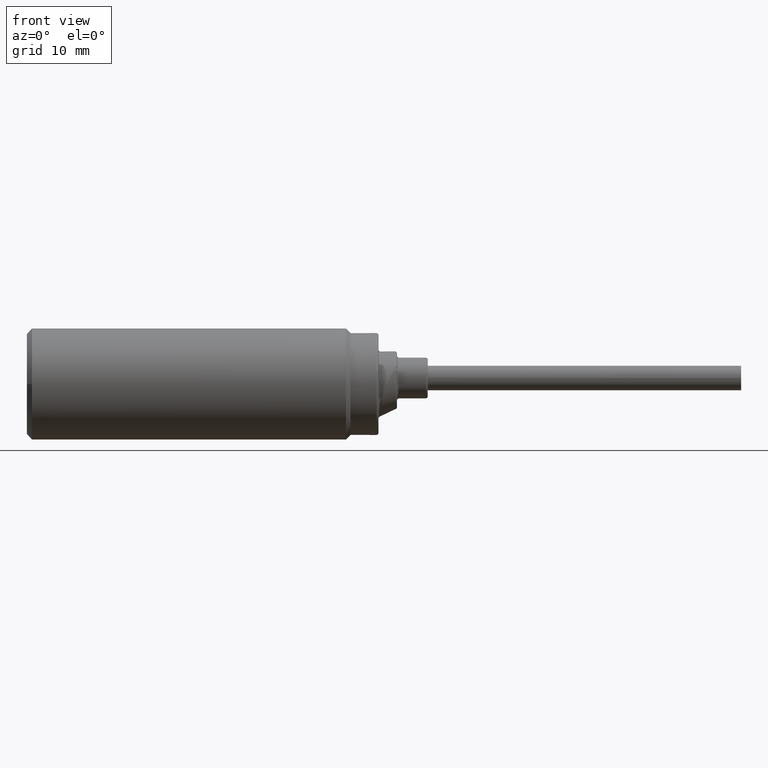
[diagram: clean part render]
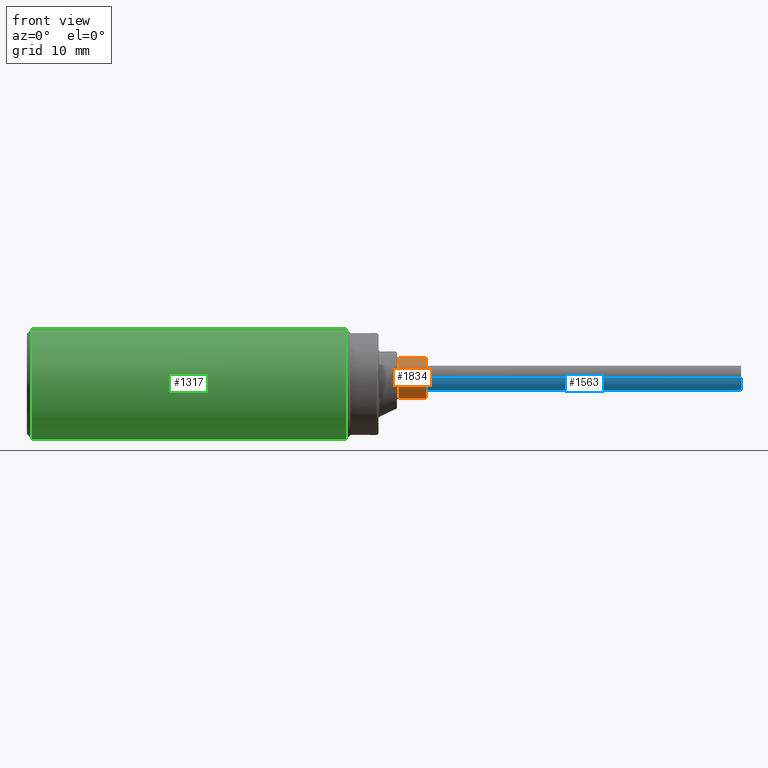
[diagram: same view with three faces highlighted in distinct colors, each labeled with its STEP entity id]
A machine part, front view with three faces highlighted in distinct colors.
Their STEP definitions:

[orange] entity #1834 — the highlighted cylindrical surface (edge-blend (fillet) strip) has radius 3.3 mm, axis along (-1, 0, 0).
#73 = ORIENTED_EDGE ( 'NONE', *, *, #2503, .F. ) ;
#137 = DIRECTION ( 'NONE',  ( -1.000000000000000000, 0.0000000000000000000, 0.0000000000000000000 ) ) ;
#140 = FACE_OUTER_BOUND ( 'NONE', #431, .T. ) ;
#194 = CARTESIAN_POINT ( 'NONE',  ( 1.395669291338583100, 0.009842519685039411600, 0.03811991482487613700 ) ) ;
#233 = CYLINDRICAL_SURFACE ( 'NONE', #1994, 0.1299212598425197000 ) ;
#255 = ORIENTED_EDGE ( 'NONE', *, *, #2382, .F. ) ;
#309 = EDGE_CURVE ( 'NONE', #1138, #3023, #1589, .T. ) ;
#326 = CARTESIAN_POINT ( 'NONE',  ( 2.366141732283464800, 0.009842519685039411600, 0.1680411746673957900 ) ) ;
#359 = CARTESIAN_POINT ( 'NONE',  ( 2.192913385826772200, 0.009842519685039411600, 0.03811991482487613700 ) ) ;
#431 = EDGE_LOOP ( 'NONE', ( #1133, #255, #73, #1435, #1389, #1550 ) ) ;
#466 = DIRECTION ( 'NONE',  ( -1.000000000000000000, 0.0000000000000000000, 0.0000000000000000000 ) ) ;
#526 = VERTEX_POINT ( 'NONE', #1430 ) ;
#629 = LINE ( 'NONE', #2076, #1123 ) ;
#709 = CARTESIAN_POINT ( 'NONE',  ( 2.192913385826772200, 0.009842519685039425500, -0.09180134501764356000 ) ) ;
#712 = CIRCLE ( 'NONE', #3056, 0.1299212598425197000 ) ;
#748 = AXIS2_PLACEMENT_3D ( 'NONE', #989, #1839, #2627 ) ;
#749 = DIRECTION ( 'NONE',  ( 1.000000000000000000, -0.0000000000000000000, -0.0000000000000000000 ) ) ;
#885 = CIRCLE ( 'NONE', #748, 0.1299212598425196500 ) ;
#989 = CARTESIAN_POINT ( 'NONE',  ( 2.366141732283464800, 0.009842519685039411600, 0.03811991482487613700 ) ) ;
#1069 = DIRECTION ( 'NONE',  ( 0.0000000000000000000, 0.0000000000000000000, 1.000000000000000000 ) ) ;
#1123 = VECTOR ( 'NONE', #466, 39.37007874015748100 ) ;
#1133 = ORIENTED_EDGE ( 'NONE', *, *, #2817, .F. ) ;
#1138 = VERTEX_POINT ( 'NONE', #2811 ) ;
#1321 = CARTESIAN_POINT ( 'NONE',  ( 2.366141732283464800, 0.009842519685039411600, 0.03811991482487613700 ) ) ;
#1389 = ORIENTED_EDGE ( 'NONE', *, *, #2112, .T. ) ;
#1430 = CARTESIAN_POINT ( 'NONE',  ( 2.366141732283464800, 0.009842519685039425500, -0.09180134501764353200 ) ) ;
#1435 = ORIENTED_EDGE ( 'NONE', *, *, #2856, .T. ) ;
#1470 = CARTESIAN_POINT ( 'NONE',  ( 1.395669291338583100, 0.009842519685039425500, -0.09180134501764356000 ) ) ;
#1550 = ORIENTED_EDGE ( 'NONE', *, *, #309, .T. ) ;
#1555 = DIRECTION ( 'NONE',  ( -1.000000000000000000, 0.0000000000000000000, 0.0000000000000000000 ) ) ;
#1589 = CIRCLE ( 'NONE', #2434, 0.1299212598425197000 ) ;
#1649 = DIRECTION ( 'NONE',  ( 0.0000000000000000000, 0.0000000000000000000, 1.000000000000000000 ) ) ;
#1666 = LINE ( 'NONE', #1470, #3161 ) ;
#1834 = ADVANCED_FACE ( 'NONE', ( #140 ), #233, .T. ) ;
#1839 = DIRECTION ( 'NONE',  ( 1.000000000000000000, -0.0000000000000000000, -0.0000000000000000000 ) ) ;
#1919 = CIRCLE ( 'NONE', #3457, 0.1299212598425196500 ) ;
#1922 = CARTESIAN_POINT ( 'NONE',  ( 2.192913385826772200, 0.009842519685039411600, 0.03811991482487613700 ) ) ;
#1987 = DIRECTION ( 'NONE',  ( 0.0000000000000000000, 0.0000000000000000000, 1.000000000000000000 ) ) ;
#1994 = AXIS2_PLACEMENT_3D ( 'NONE', #194, #1555, #1069 ) ;
#2076 = CARTESIAN_POINT ( 'NONE',  ( 1.395669291338583100, 0.009842519685039411600, 0.1680411746673958500 ) ) ;
#2112 = EDGE_CURVE ( 'NONE', #2306, #1138, #712, .T. ) ;
#2306 = VERTEX_POINT ( 'NONE', #3394 ) ;
#2382 = EDGE_CURVE ( 'NONE', #2818, #526, #885, .T. ) ;
#2434 = AXIS2_PLACEMENT_3D ( 'NONE', #1922, #2712, #1649 ) ;
#2503 = EDGE_CURVE ( 'NONE', #2779, #2818, #1919, .T. ) ;
#2627 = DIRECTION ( 'NONE',  ( 0.0000000000000000000, 0.9682458365518538100, -0.2500000000000015000 ) ) ;
#2712 = DIRECTION ( 'NONE',  ( 1.000000000000000000, -0.0000000000000000000, -0.0000000000000000000 ) ) ;
#2779 = VERTEX_POINT ( 'NONE', #326 ) ;
#2811 = CARTESIAN_POINT ( 'NONE',  ( 2.192913385826772200, -0.1159531992370518400, 0.07060022978550625800 ) ) ;
#2817 = EDGE_CURVE ( 'NONE', #526, #3023, #1666, .T. ) ;
#2818 = VERTEX_POINT ( 'NONE', #3351 ) ;
#2856 = EDGE_CURVE ( 'NONE', #2779, #2306, #629, .T. ) ;
#3023 = VERTEX_POINT ( 'NONE', #709 ) ;
#3045 = DIRECTION ( 'NONE',  ( 1.000000000000000000, -0.0000000000000000000, -0.0000000000000000000 ) ) ;
#3056 = AXIS2_PLACEMENT_3D ( 'NONE', #359, #3045, #1987 ) ;
#3161 = VECTOR ( 'NONE', #137, 39.37007874015748100 ) ;
#3187 = DIRECTION ( 'NONE',  ( 0.0000000000000000000, 0.9682458365518535900, -0.2500000000000023300 ) ) ;
#3351 = CARTESIAN_POINT ( 'NONE',  ( 2.366141732283464800, -0.1159531992370518200, 0.07060022978550621600 ) ) ;
#3394 = CARTESIAN_POINT ( 'NONE',  ( 2.192913385826772200, 0.009842519685039411600, 0.1680411746673958500 ) ) ;
#3457 = AXIS2_PLACEMENT_3D ( 'NONE', #1321, #749, #3187 ) ;

[blue] entity #1563 — the highlighted cylindrical surface (edge-blend (fillet) strip) has radius 2 mm, axis along (-1, -0, 0).
#38 = DIRECTION ( 'NONE',  ( -1.000000000000000000, -3.834644641178698600E-017, 9.894819485414009300E-018 ) ) ;
#144 = LINE ( 'NONE', #2744, #1417 ) ;
#228 = VERTEX_POINT ( 'NONE', #1576 ) ;
#291 = VERTEX_POINT ( 'NONE', #2142 ) ;
#405 = CARTESIAN_POINT ( 'NONE',  ( 81.03543307086614800, -0.06889763779527559300, 0.03811991482487619300 ) ) ;
#422 = CARTESIAN_POINT ( 'NONE',  ( 2.377952755905512000, 0.009842519685036355000, 0.03811991482487697000 ) ) ;
#436 = FACE_OUTER_BOUND ( 'NONE', #2052, .T. ) ;
#460 = DIRECTION ( 'NONE',  ( 1.000000000000000000, 3.834644641178698600E-017, -9.894819485414009300E-018 ) ) ;
#549 = AXIS2_PLACEMENT_3D ( 'NONE', #3330, #1984, #1750 ) ;
#569 = EDGE_CURVE ( 'NONE', #3355, #2717, #590, .T. ) ;
#571 = LINE ( 'NONE', #2761, #3256 ) ;
#581 = DIRECTION ( 'NONE',  ( 0.0000000000000000000, -1.000000000000000000, 0.0000000000000000000 ) ) ;
#590 = CIRCLE ( 'NONE', #549, 0.07874015748031496000 ) ;
#595 = VERTEX_POINT ( 'NONE', #1471 ) ;
#609 = DIRECTION ( 'NONE',  ( -1.000000000000000000, -3.834644641178698600E-017, 9.894819485414009300E-018 ) ) ;
#610 = DIRECTION ( 'NONE',  ( -1.000000000000000000, -3.834644641178698600E-017, 9.894819485414009300E-018 ) ) ;
#775 = AXIS2_PLACEMENT_3D ( 'NONE', #864, #609, #581 ) ;
#864 = CARTESIAN_POINT ( 'NONE',  ( 81.03543307086614800, 0.009842519685039369900, 0.03811991482487619300 ) ) ;
#916 = EDGE_CURVE ( 'NONE', #291, #2632, #144, .T. ) ;
#1012 = EDGE_CURVE ( 'NONE', #2972, #228, #1909, .T. ) ;
#1078 = CIRCLE ( 'NONE', #2083, 0.07874015748031496000 ) ;
#1136 = CIRCLE ( 'NONE', #1852, 0.07874015748031496000 ) ;
#1145 = EDGE_CURVE ( 'NONE', #2632, #2972, #1136, .T. ) ;
#1338 = ORIENTED_EDGE ( 'NONE', *, *, #1938, .T. ) ;
#1345 = VECTOR ( 'NONE', #610, 39.37007874015748100 ) ;
#1417 = VECTOR ( 'NONE', #3253, 39.37007874015748100 ) ;
#1449 = ORIENTED_EDGE ( 'NONE', *, *, #2468, .T. ) ;
#1471 = CARTESIAN_POINT ( 'NONE',  ( 2.211602206097127000, 0.08858267716535130100, 0.03811991482487697000 ) ) ;
#1563 = ADVANCED_FACE ( 'NONE', ( #436 ), #3141, .T. ) ;
#1576 = CARTESIAN_POINT ( 'NONE',  ( 2.211602206097123000, 0.08624794536390607800, 0.01908774923985976500 ) ) ;
#1588 = ORIENTED_EDGE ( 'NONE', *, *, #1012, .T. ) ;
#1595 = ORIENTED_EDGE ( 'NONE', *, *, #1145, .T. ) ;
#1691 = EDGE_CURVE ( 'NONE', #2717, #595, #571, .T. ) ;
#1750 = DIRECTION ( 'NONE',  ( 0.0000000000000000000, -1.000000000000000000, 0.0000000000000000000 ) ) ;
#1852 = AXIS2_PLACEMENT_3D ( 'NONE', #422, #460, #2600 ) ;
#1868 = CARTESIAN_POINT ( 'NONE',  ( 2.377952755905512000, 0.08624794536390643900, 0.01908774923986118100 ) ) ;
#1898 = EDGE_CURVE ( 'NONE', #3355, #3247, #2137, .T. ) ;
#1909 = LINE ( 'NONE', #3017, #2553 ) ;
#1938 = EDGE_CURVE ( 'NONE', #228, #595, #2057, .T. ) ;
#1984 = DIRECTION ( 'NONE',  ( 1.000000000000000000, 2.930004887164251900E-015, 0.0000000000000000000 ) ) ;
#2052 = EDGE_LOOP ( 'NONE', ( #3241, #2510, #3326, #1449, #2905, #1595, #1588, #1338 ) ) ;
#2057 = CIRCLE ( 'NONE', #2520, 0.07874015748031496000 ) ;
#2083 = AXIS2_PLACEMENT_3D ( 'NONE', #3437, #2644, #2902 ) ;
#2137 = LINE ( 'NONE', #405, #1345 ) ;
#2142 = CARTESIAN_POINT ( 'NONE',  ( 2.211602206097116300, -0.06656290599383410400, 0.01908774923986262000 ) ) ;
#2282 = CARTESIAN_POINT ( 'NONE',  ( 2.211602206097127000, 0.009842519685036348100, 0.03811991482487697000 ) ) ;
#2468 = EDGE_CURVE ( 'NONE', #3247, #291, #1078, .T. ) ;
#2507 = CARTESIAN_POINT ( 'NONE',  ( 2.377952755905512000, -0.06656290599383410400, 0.01908774923986264100 ) ) ;
#2510 = ORIENTED_EDGE ( 'NONE', *, *, #569, .F. ) ;
#2520 = AXIS2_PLACEMENT_3D ( 'NONE', #2282, #2776, #3046 ) ;
#2553 = VECTOR ( 'NONE', #3310, 39.37007874015748100 ) ;
#2600 = DIRECTION ( 'NONE',  ( 0.0000000000000000000, -1.000000000000000000, 0.0000000000000000000 ) ) ;
#2632 = VERTEX_POINT ( 'NONE', #2507 ) ;
#2644 = DIRECTION ( 'NONE',  ( 1.000000000000000000, 3.834644641178698600E-017, -9.894819485414009300E-018 ) ) ;
#2717 = VERTEX_POINT ( 'NONE', #3263 ) ;
#2725 = CARTESIAN_POINT ( 'NONE',  ( 2.211602206097109200, -0.06889763779527861800, 0.03811991482487696300 ) ) ;
#2744 = CARTESIAN_POINT ( 'NONE',  ( 81.03543307086614800, -0.06656290599383107900, 0.01908774923986184300 ) ) ;
#2761 = CARTESIAN_POINT ( 'NONE',  ( 81.03543307086614800, 0.08858267716535434000, 0.03811991482487620000 ) ) ;
#2776 = DIRECTION ( 'NONE',  ( 1.000000000000000000, 3.834644641178698600E-017, -9.894819485414009300E-018 ) ) ;
#2902 = DIRECTION ( 'NONE',  ( 0.0000000000000000000, -1.000000000000000000, 0.0000000000000000000 ) ) ;
#2905 = ORIENTED_EDGE ( 'NONE', *, *, #916, .T. ) ;
#2972 = VERTEX_POINT ( 'NONE', #1868 ) ;
#3017 = CARTESIAN_POINT ( 'NONE',  ( 81.03543307086614800, 0.08624794536390909000, 0.01908774923985898400 ) ) ;
#3046 = DIRECTION ( 'NONE',  ( 0.0000000000000000000, -1.000000000000000000, 5.312590645178971700E-015 ) ) ;
#3141 = CYLINDRICAL_SURFACE ( 'NONE', #775, 0.07874015748031496000 ) ;
#3241 = ORIENTED_EDGE ( 'NONE', *, *, #1691, .F. ) ;
#3247 = VERTEX_POINT ( 'NONE', #2725 ) ;
#3253 = DIRECTION ( 'NONE',  ( 1.000000000000000000, 3.834644641178698600E-017, -9.894819485414009300E-018 ) ) ;
#3256 = VECTOR ( 'NONE', #38, 39.37007874015748100 ) ;
#3263 = CARTESIAN_POINT ( 'NONE',  ( 4.377952755905519100, 0.08858267716535138400, 0.03811991482487697000 ) ) ;
#3310 = DIRECTION ( 'NONE',  ( -1.000000000000000000, -3.834644641178698600E-017, 9.894819485414009300E-018 ) ) ;
#3326 = ORIENTED_EDGE ( 'NONE', *, *, #1898, .T. ) ;
#3330 = CARTESIAN_POINT ( 'NONE',  ( 4.377952755905519100, 0.009842519685036431300, 0.03811991482487694900 ) ) ;
#3343 = CARTESIAN_POINT ( 'NONE',  ( 4.377952755905519100, -0.06889763779527853500, 0.03811991482487694900 ) ) ;
#3355 = VERTEX_POINT ( 'NONE', #3343 ) ;
#3437 = CARTESIAN_POINT ( 'NONE',  ( 2.211602206097109200, 0.009842519685036348100, 0.03811991482487697000 ) ) ;

[green] entity #1317 — the highlighted cylindrical surface (partial cylindrical patch) has radius 9 mm, axis along (-1, -0, -0).
#222 = ORIENTED_EDGE ( 'NONE', *, *, #247, .T. ) ;
#225 = DIRECTION ( 'NONE',  ( 0.0000000000000000000, 0.0000000000000000000, 1.000000000000000000 ) ) ;
#247 = EDGE_CURVE ( 'NONE', #3410, #3217, #1891, .T. ) ;
#251 = DIRECTION ( 'NONE',  ( 0.0000000000000000000, 0.0000000000000000000, 1.000000000000000000 ) ) ;
#281 = EDGE_CURVE ( 'NONE', #3217, #2128, #2992, .T. ) ;
#306 = CIRCLE ( 'NONE', #860, 0.3543307086614173600 ) ;
#424 = VERTEX_POINT ( 'NONE', #2344 ) ;
#493 = CARTESIAN_POINT ( 'NONE',  ( 1.856299212598424800, 1.905463975580823500E-017, 3.332107562584632300E-018 ) ) ;
#619 = CARTESIAN_POINT ( 'NONE',  ( -0.1476377952755910100, 6.244763657599004200E-017, -0.3543307086614173600 ) ) ;
#833 = ORIENTED_EDGE ( 'NONE', *, *, #2789, .T. ) ;
#860 = AXIS2_PLACEMENT_3D ( 'NONE', #493, #2652, #2129 ) ;
#1042 = VERTEX_POINT ( 'NONE', #619 ) ;
#1073 = DIRECTION ( 'NONE',  ( -1.000000000000000000, -0.0000000000000000000, -0.0000000000000000000 ) ) ;
#1100 = EDGE_LOOP ( 'NONE', ( #2322, #1717, #222, #1763, #833 ) ) ;
#1187 = DIRECTION ( 'NONE',  ( 1.000000000000000000, 0.0000000000000000000, 0.0000000000000000000 ) ) ;
#1268 = EDGE_CURVE ( 'NONE', #3410, #424, #306, .T. ) ;
#1317 = ADVANCED_FACE ( 'NONE', ( #2391 ), #2721, .T. ) ;
#1337 = CARTESIAN_POINT ( 'NONE',  ( -0.1476377952755910100, 1.905463975580823500E-017, 3.332107562584632300E-018 ) ) ;
#1349 = CARTESIAN_POINT ( 'NONE',  ( -0.1811023622047247000, 1.905463975580823500E-017, 3.332107562584632300E-018 ) ) ;
#1400 = DIRECTION ( 'NONE',  ( -1.000000000000000000, -0.0000000000000000000, -0.0000000000000000000 ) ) ;
#1440 = DIRECTION ( 'NONE',  ( 0.0000000000000000000, 0.0000000000000000000, 1.000000000000000000 ) ) ;
#1458 = CARTESIAN_POINT ( 'NONE',  ( -0.1476377952755910100, 1.905463975580823500E-017, 3.332107562584632300E-018 ) ) ;
#1537 = CIRCLE ( 'NONE', #2738, 0.3543307086614173600 ) ;
#1717 = ORIENTED_EDGE ( 'NONE', *, *, #1268, .F. ) ;
#1763 = ORIENTED_EDGE ( 'NONE', *, *, #281, .T. ) ;
#1845 = CARTESIAN_POINT ( 'NONE',  ( 1.856299212598424800, 1.905463975580823500E-017, 0.3543307086614173600 ) ) ;
#1847 = LINE ( 'NONE', #2995, #2245 ) ;
#1891 = LINE ( 'NONE', #3213, #2491 ) ;
#2128 = VERTEX_POINT ( 'NONE', #2465 ) ;
#2129 = DIRECTION ( 'NONE',  ( 0.0000000000000000000, 0.0000000000000000000, 1.000000000000000000 ) ) ;
#2245 = VECTOR ( 'NONE', #1400, 39.37007874015748100 ) ;
#2322 = ORIENTED_EDGE ( 'NONE', *, *, #2658, .F. ) ;
#2344 = CARTESIAN_POINT ( 'NONE',  ( 1.856299212598424800, 6.244763657599004200E-017, -0.3543307086614173600 ) ) ;
#2391 = FACE_OUTER_BOUND ( 'NONE', #1100, .T. ) ;
#2465 = CARTESIAN_POINT ( 'NONE',  ( -0.1476377952755910100, -0.3543307086614173600, 4.339299682018181900E-017 ) ) ;
#2491 = VECTOR ( 'NONE', #3163, 39.37007874015748100 ) ;
#2652 = DIRECTION ( 'NONE',  ( 1.000000000000000000, 0.0000000000000000000, 0.0000000000000000000 ) ) ;
#2658 = EDGE_CURVE ( 'NONE', #424, #1042, #1847, .T. ) ;
#2674 = AXIS2_PLACEMENT_3D ( 'NONE', #1337, #3198, #251 ) ;
#2721 = CYLINDRICAL_SURFACE ( 'NONE', #3344, 0.3543307086614173600 ) ;
#2738 = AXIS2_PLACEMENT_3D ( 'NONE', #1458, #1187, #1440 ) ;
#2789 = EDGE_CURVE ( 'NONE', #2128, #1042, #1537, .T. ) ;
#2992 = CIRCLE ( 'NONE', #2674, 0.3543307086614173600 ) ;
#2995 = CARTESIAN_POINT ( 'NONE',  ( -0.1811023622047247000, 6.244763657599004200E-017, -0.3543307086614173600 ) ) ;
#3163 = DIRECTION ( 'NONE',  ( -1.000000000000000000, -0.0000000000000000000, -0.0000000000000000000 ) ) ;
#3198 = DIRECTION ( 'NONE',  ( 1.000000000000000000, 0.0000000000000000000, 0.0000000000000000000 ) ) ;
#3213 = CARTESIAN_POINT ( 'NONE',  ( -0.1811023622047247000, 1.905463975580823500E-017, 0.3543307086614173600 ) ) ;
#3217 = VERTEX_POINT ( 'NONE', #3269 ) ;
#3269 = CARTESIAN_POINT ( 'NONE',  ( -0.1476377952755910100, 1.905463975580823500E-017, 0.3543307086614173600 ) ) ;
#3344 = AXIS2_PLACEMENT_3D ( 'NONE', #1349, #1073, #225 ) ;
#3410 = VERTEX_POINT ( 'NONE', #1845 ) ;